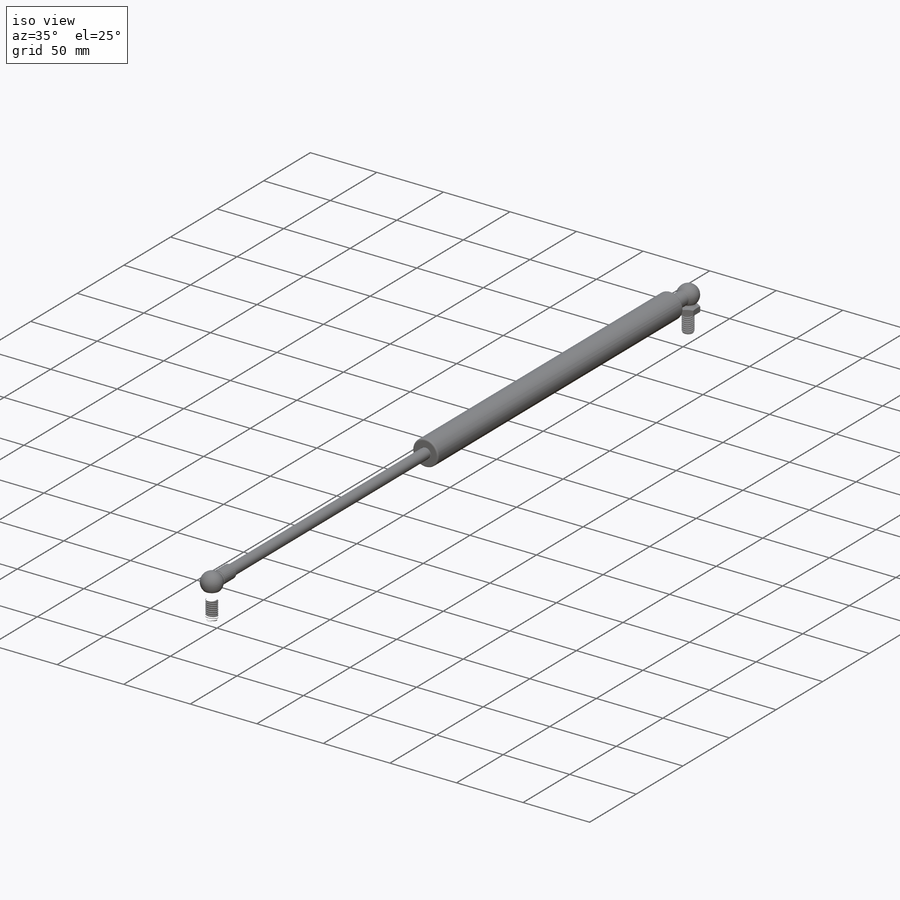
[diagram: iso view]
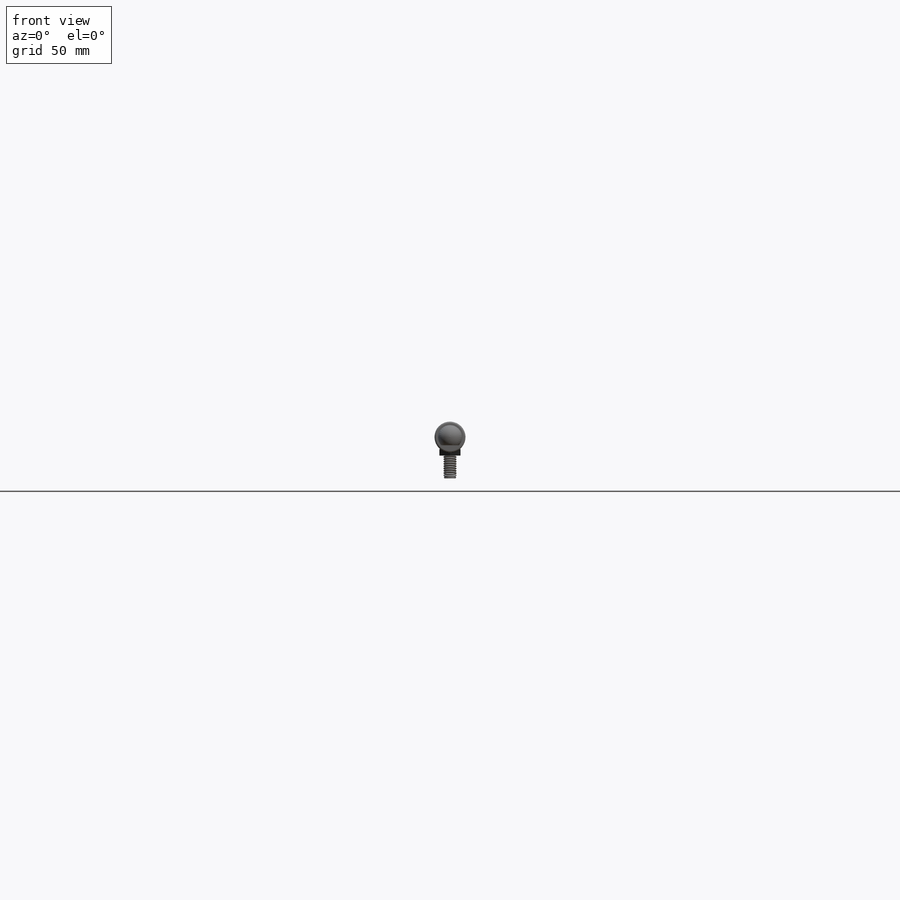
[diagram: front view]
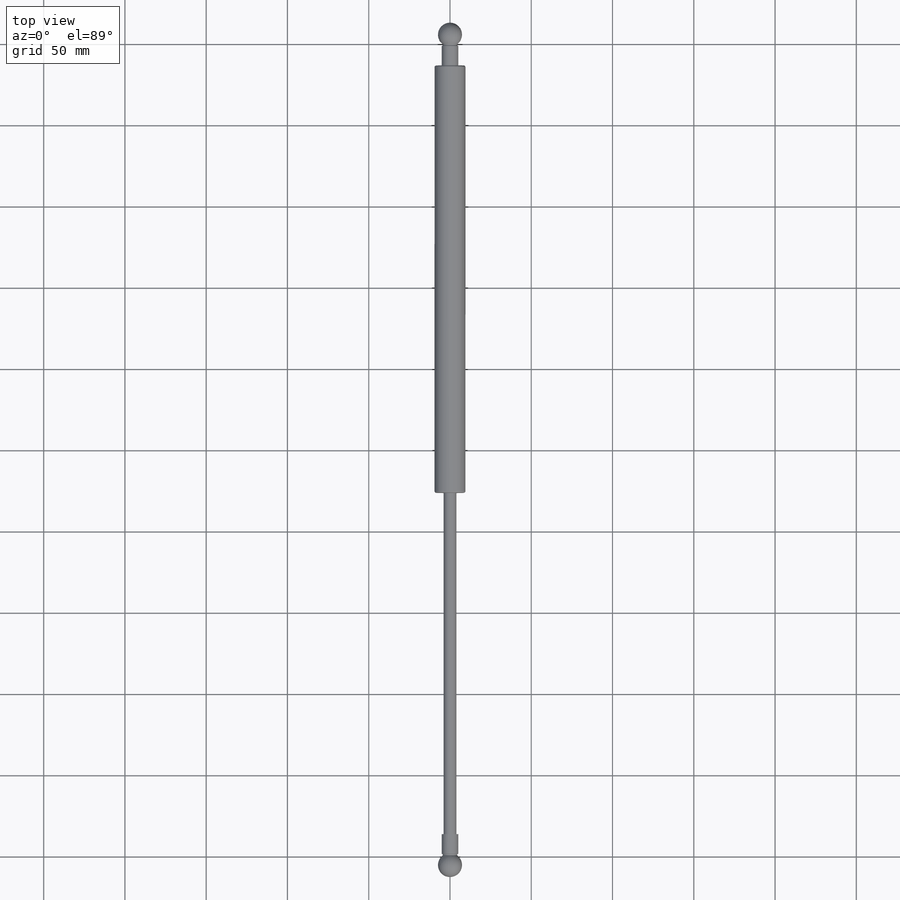
[diagram: top view]
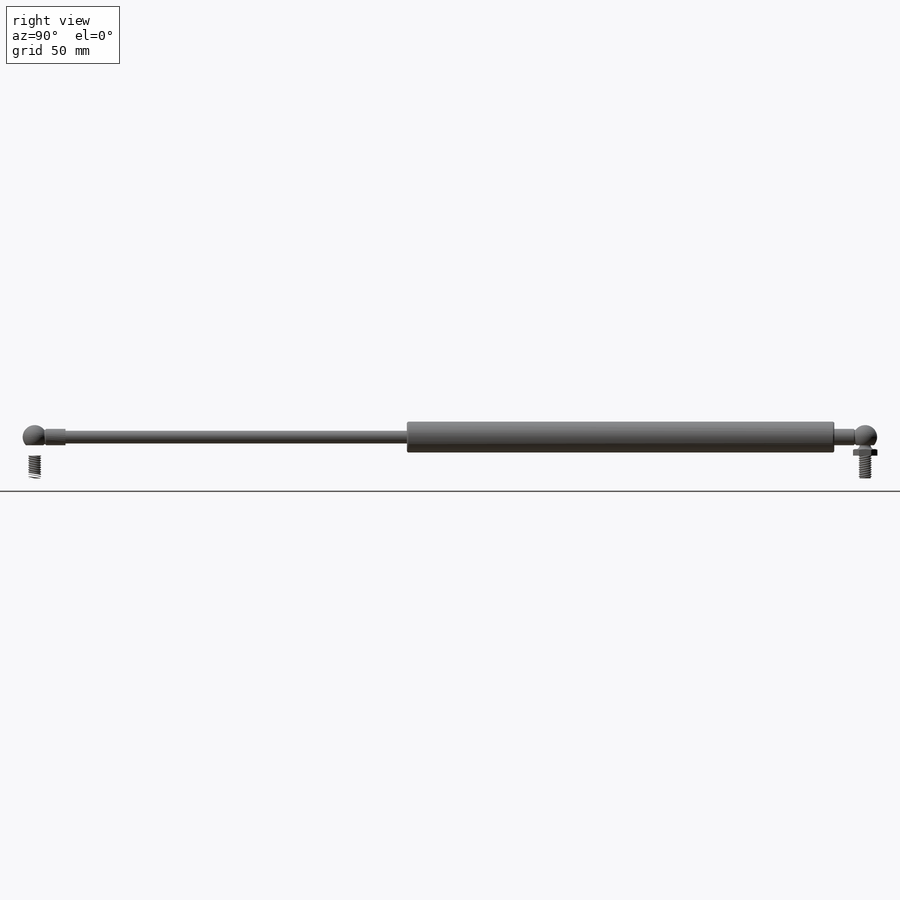
[diagram: right view]
SOLIDWORKS PART (.sldprt)
format: sldprt  version: not decoded by parser v0  size: 902,144 bytes
history: native  units: mm
features: sketch x10, revolve x5, mirror x3, cut_revolve x2, pattern_linear x2, material x1, plane x1, fillet x1, extrude x1, cut_extrude x1, boolean_combine x1 (+13 scaffold rows collapsed)
feature tree (41):
  scaffold x13  (default folders/planes/origin — collapsed)
  material  "Material <not specified>"
  sketch  "Sketch1"  dims[B Compressed Length=300.99mm C Stroke=210.058mm D3=30.226mm D4=19.0mm D5=19.0mm D6=19.0mm E Cylinder Dia=19.05mm D Rod Dia=7.874mm D7=0.15mm D8=20.0mm D9=5.438mm A Ext Length=511.048mm]
  revolve  "Revolve1"  Angle=360deg
  plane  "Plane1"
  fillet  "Fillet2"  Radius=1.0876mm
  sketch  "Sketch2"  dims[c1.D2=14.8mm c1.D3=1.27mm c1.D4=10.2mm c1.D1=10.1mm c2.D4=~1.980582mm]
  revolve  "Revolve2"  Angle=360deg
  sketch  "Sketch3"  dims[D1=12.33mm]
  cut_revolve  "Cut-Revolve1"  Angle=360deg
  sketch  "Sketch4"  dims[c1.D1=9.9mm c1.D4=4.95mm c1.D9=15.875mm c1.D2=~3.96875mm c1.D3=13.97mm c2.D4=15.302mm c2.D5=13.0mm c2.D6=34.364mm c2.D7=4.5mm c2.D8=3.5mm c3.D7=~3.976036mm c3.D8=1.5mm c3.D10=4.0mm c3.D2=7.9375mm c3.D11=30.226mm c3.D4=0.635mm c4.D7=30.226mm c4.D6=25.4mm c5.D7=~1.984375mm]
  revolve  "Revolve3"  Angle=360deg
  sketch  "Sketch5"
  extrude  "Extrude1"  [1 undecoded]
  sketch  "Sketch6"
  cut_extrude  "Cut-Extrude2"  [1 undecoded]
  sketch  "Sketch7"  dims[c1.D1=~12.853636mm c2.D1=25.0deg c2.D2=~3.434192mm]
  revolve  "Revolve4"  Angle=360deg
  sketch  "Sketch8"  dims[c1.D1=~0.176389mm c1.D2=~0.352778mm c1.D3=~1.411111mm c1.D4=~1.680406mm c2.D4=60.0deg c2.D5=~1.411111mm]
  cut_revolve  "Cut-Revolve2"  Angle=360deg
  pattern_linear  "LPattern1"  Count1=10 Count2=2 Spacing1=1.411111mm Spacing2=1.411111mm
  boolean_combine  "Combine1"
  sketch  "Sketch9"  dims[D1=~32.069208mm]
  revolve  "Revolve5"  Angle=360deg
  mirror  "Mirror2"
  mirror  "Combine2"
  mirror  "Combine3"
  pattern_linear  "LPattern2"  Count1=2 Count2=1 Spacing1=210.058mm Spacing2=50mm
  sketch  "Sketch10"
decode coverage: 17 of 26 modeling features carry decoded parameters
note: ~ marks probable driven/reference dimensions
note: 2 parameter values undecoded
note: suppression state not decoded; provenance and decode notes live in map.json
